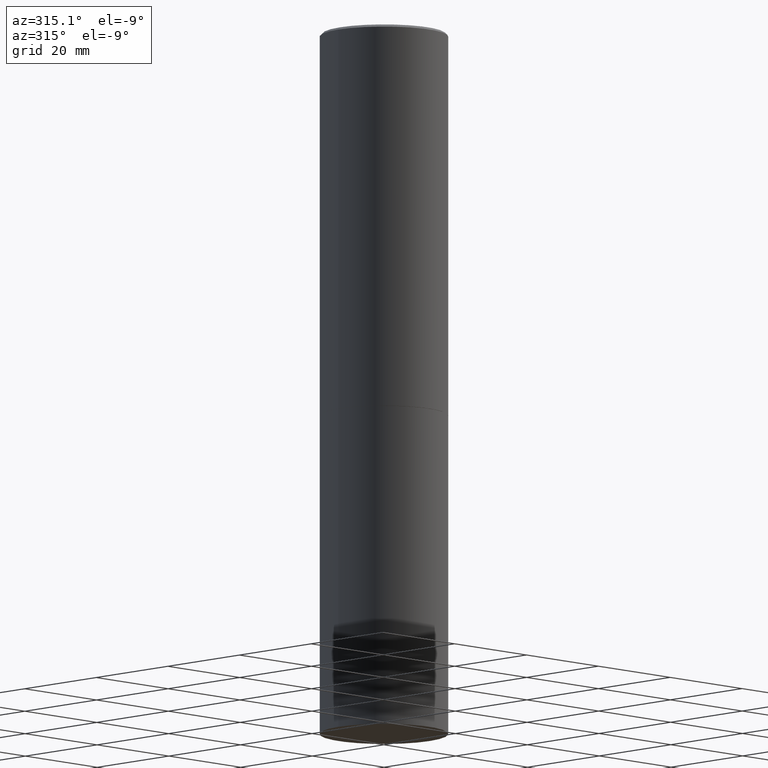
[diagram: clean part render]
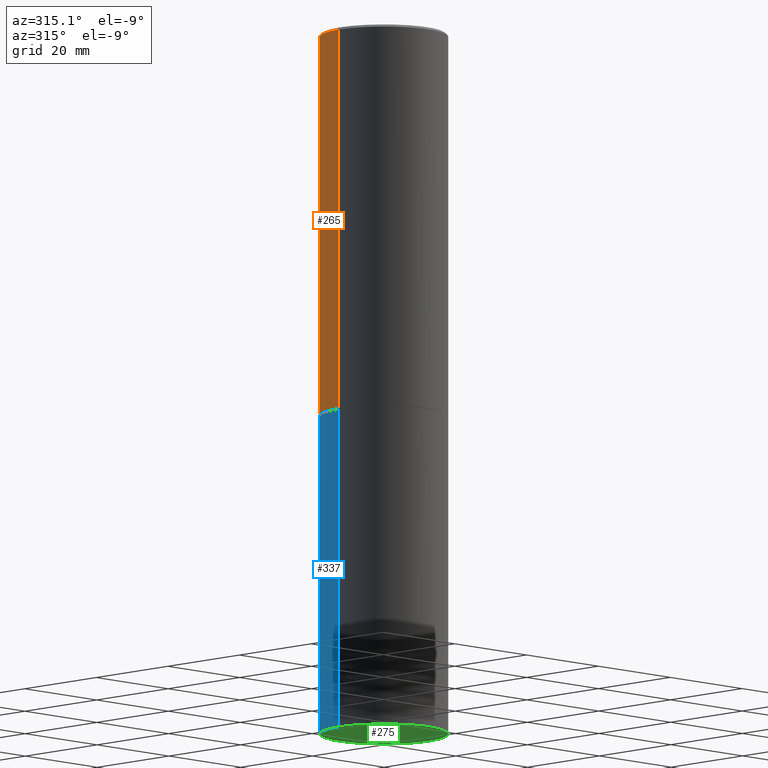
[diagram: same view with three faces highlighted in distinct colors, each labeled with its STEP entity id]
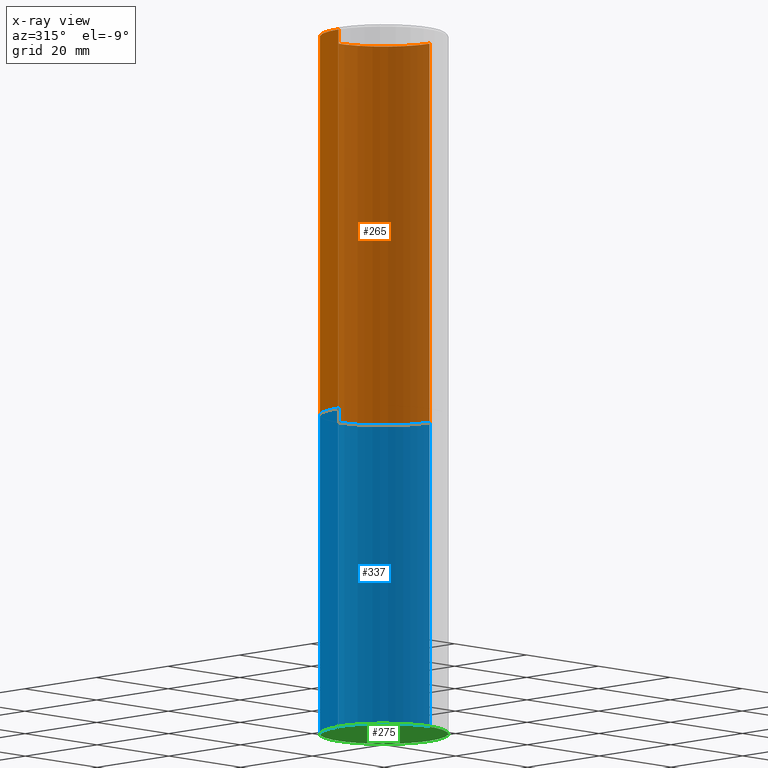
[diagram: x-ray of the same camera — body ghosted, the three highlighted faces saturated]
A machine part, auxiliary view with three faces highlighted in distinct colors.
The next image is the same camera in x-ray (body ghosted, the three faces saturated) — at least one of them is partly hidden behind the body in this view.
Their STEP definitions:

[orange] entity #265 — the highlighted cylindrical surface (partial cylindrical patch) has radius 12.7 mm, axis along (-0, 0, 1).
#1 = DIRECTION ( 'NONE',  ( 1.000000000000000000, -6.982962677686266711E-15, 0.000000000000000000 ) ) ;
#3 = LINE ( 'NONE', #17, #142 ) ;
#12 = VERTEX_POINT ( 'NONE', #364 ) ;
#17 = CARTESIAN_POINT ( 'NONE',  ( -0.4999999999999998335, 3.552713678800499746E-15, -2.459467545127452330E-29 ) ) ;
#18 = VERTEX_POINT ( 'NONE', #109 ) ;
#42 = VERTEX_POINT ( 'NONE', #187 ) ;
#46 = EDGE_LOOP ( 'NONE', ( #338, #139, #298, #237 ) ) ;
#50 = CIRCLE ( 'NONE', #341, 0.5000000000000000000 ) ;
#53 = CARTESIAN_POINT ( 'NONE',  ( 0.4999999999999998335, -3.491481338843132566E-15, 2.438088387897967336E-29 ) ) ;
#92 = DIRECTION ( 'NONE',  ( -2.445468806185136597E-29, 3.491481338843145583E-15, 1.000000000000000000 ) ) ;
#107 = DIRECTION ( 'NONE',  ( -2.445468806185136877E-29, 3.491481338843145188E-15, 1.000000000000000000 ) ) ;
#109 = CARTESIAN_POINT ( 'NONE',  ( 0.4999999999999997224, -3.500078625662627502E-15, -0.02000000000000013572 ) ) ;
#132 = DIRECTION ( 'NONE',  ( -2.445468806185136597E-29, 3.491481338843145583E-15, 1.000000000000000000 ) ) ;
#134 = LINE ( 'NONE', #53, #175 ) ;
#139 = ORIENTED_EDGE ( 'NONE', *, *, #172, .T. ) ;
#142 = VECTOR ( 'NONE', #163, 39.37007874015748143 ) ;
#146 = CARTESIAN_POINT ( 'NONE',  ( 7.333960949749226429E-29, -1.047095253519059492E-14, -2.999000000000000554 ) ) ;
#155 = AXIS2_PLACEMENT_3D ( 'NONE', #208, #132, #1 ) ;
#163 = DIRECTION ( 'NONE',  ( -2.445468806185136877E-29, 3.491481338843145188E-15, 1.000000000000000000 ) ) ;
#172 = EDGE_CURVE ( 'NONE', #42, #12, #3, .T. ) ;
#175 = VECTOR ( 'NONE', #107, 39.37007874015748143 ) ;
#187 = CARTESIAN_POINT ( 'NONE',  ( -0.5000000000000000000, -1.717677402183226998E-15, -2.999000000000000554 ) ) ;
#207 = CIRCLE ( 'NONE', #155, 0.4999999999999997224 ) ;
#208 = CARTESIAN_POINT ( 'NONE',  ( 4.890937612370306439E-31, -6.982962677686338448E-17, -0.02000000000000013572 ) ) ;
#211 = CYLINDRICAL_SURFACE ( 'NONE', #330, 0.4999999999999998335 ) ;
#217 = DIRECTION ( 'NONE',  ( -2.445468806185136597E-29, 3.491481338843145583E-15, 1.000000000000000000 ) ) ;
#221 = DIRECTION ( 'NONE',  ( 1.000000000000000000, -6.982962677686266711E-15, 0.000000000000000000 ) ) ;
#237 = ORIENTED_EDGE ( 'NONE', *, *, #284, .F. ) ;
#240 = EDGE_CURVE ( 'NONE', #18, #12, #207, .T. ) ;
#245 = FACE_OUTER_BOUND ( 'NONE', #46, .T. ) ;
#262 = DIRECTION ( 'NONE',  ( 1.000000000000000000, -6.982962677686267499E-15, 4.876176775795936353E-29 ) ) ;
#265 = ADVANCED_FACE ( 'NONE', ( #245 ), #211, .T. ) ;
#284 = EDGE_CURVE ( 'NONE', #289, #18, #134, .T. ) ;
#289 = VERTEX_POINT ( 'NONE', #366 ) ;
#298 = ORIENTED_EDGE ( 'NONE', *, *, #240, .F. ) ;
#330 = AXIS2_PLACEMENT_3D ( 'NONE', #361, #217, #262 ) ;
#338 = ORIENTED_EDGE ( 'NONE', *, *, #358, .T. ) ;
#341 = AXIS2_PLACEMENT_3D ( 'NONE', #146, #92, #221 ) ;
#358 = EDGE_CURVE ( 'NONE', #289, #42, #50, .T. ) ;
#361 = CARTESIAN_POINT ( 'NONE',  ( 0.000000000000000000, 0.000000000000000000, 0.000000000000000000 ) ) ;
#364 = CARTESIAN_POINT ( 'NONE',  ( -0.4999999999999997224, 3.421651712066268085E-15, -0.02000000000000013572 ) ) ;
#366 = CARTESIAN_POINT ( 'NONE',  ( 0.5000000000000000000, -1.396243387403372828E-14, -2.999000000000000554 ) ) ;

[blue] entity #337 — the highlighted cylindrical surface (partial cylindrical patch) has radius 12.7 mm, axis along (-0, 0, 1).
#6 = VECTOR ( 'NONE', #311, 39.37007874015748143 ) ;
#10 = VECTOR ( 'NONE', #57, 39.37007874015748143 ) ;
#15 = DIRECTION ( 'NONE',  ( -2.445468806185136597E-29, 3.491481338843145583E-15, 1.000000000000000000 ) ) ;
#21 = FACE_OUTER_BOUND ( 'NONE', #79, .T. ) ;
#28 = EDGE_CURVE ( 'NONE', #213, #69, #215, .T. ) ;
#45 = EDGE_CURVE ( 'NONE', #272, #239, #206, .T. ) ;
#55 = AXIS2_PLACEMENT_3D ( 'NONE', #171, #15, #130 ) ;
#56 = CYLINDRICAL_SURFACE ( 'NONE', #55, 0.5000000000000000000 ) ;
#57 = DIRECTION ( 'NONE',  ( -2.445468806185136877E-29, 3.491481338843145188E-15, 1.000000000000000000 ) ) ;
#69 = VERTEX_POINT ( 'NONE', #133 ) ;
#72 = ORIENTED_EDGE ( 'NONE', *, *, #290, .F. ) ;
#79 = EDGE_LOOP ( 'NONE', ( #295, #204, #72, #103 ) ) ;
#103 = ORIENTED_EDGE ( 'NONE', *, *, #28, .F. ) ;
#106 = CARTESIAN_POINT ( 'NONE',  ( -0.5000000000000000000, -1.128608201128286632E-14, -5.500000000000000000 ) ) ;
#129 = AXIS2_PLACEMENT_3D ( 'NONE', #345, #180, #280 ) ;
#130 = DIRECTION ( 'NONE',  ( 1.000000000000000000, -6.982962677686266711E-15, 4.876176775795935793E-29 ) ) ;
#133 = CARTESIAN_POINT ( 'NONE',  ( 0.5000000000000000000, -1.396592535537256813E-14, -2.999999999999999556 ) ) ;
#164 = CIRCLE ( 'NONE', #129, 0.5000000000000000000 ) ;
#167 = DIRECTION ( 'NONE',  ( -2.445468806185136597E-29, 3.491481338843145583E-15, 1.000000000000000000 ) ) ;
#168 = CARTESIAN_POINT ( 'NONE',  ( -0.5000000000000000000, -1.128608201128286632E-14, -2.999999999999999556 ) ) ;
#171 = CARTESIAN_POINT ( 'NONE',  ( 0.000000000000000000, 0.000000000000000000, 0.000000000000000000 ) ) ;
#180 = DIRECTION ( 'NONE',  ( -2.445468806185136597E-29, 3.491481338843145583E-15, 1.000000000000000000 ) ) ;
#204 = ORIENTED_EDGE ( 'NONE', *, *, #45, .T. ) ;
#206 = LINE ( 'NONE', #259, #6 ) ;
#213 = VERTEX_POINT ( 'NONE', #266 ) ;
#215 = LINE ( 'NONE', #303, #10 ) ;
#239 = VERTEX_POINT ( 'NONE', #168 ) ;
#259 = CARTESIAN_POINT ( 'NONE',  ( -0.5000000000000000000, 3.552713678800500929E-15, -2.459467545127452891E-29 ) ) ;
#266 = CARTESIAN_POINT ( 'NONE',  ( 0.5000000000000000000, -2.269462870248043307E-14, -5.500000000000000000 ) ) ;
#272 = VERTEX_POINT ( 'NONE', #106 ) ;
#280 = DIRECTION ( 'NONE',  ( 1.000000000000000000, -6.982962677686262766E-15, 0.000000000000000000 ) ) ;
#283 = CIRCLE ( 'NONE', #362, 0.5000000000000000000 ) ;
#290 = EDGE_CURVE ( 'NONE', #69, #239, #283, .T. ) ;
#295 = ORIENTED_EDGE ( 'NONE', *, *, #354, .T. ) ;
#302 = CARTESIAN_POINT ( 'NONE',  ( 7.336406418555408669E-29, -1.047444401652943478E-14, -2.999999999999999556 ) ) ;
#303 = CARTESIAN_POINT ( 'NONE',  ( 0.5000000000000000000, -3.491481338843133355E-15, 2.438088387897967896E-29 ) ) ;
#311 = DIRECTION ( 'NONE',  ( -2.445468806185136877E-29, 3.491481338843145188E-15, 1.000000000000000000 ) ) ;
#335 = DIRECTION ( 'NONE',  ( 1.000000000000000000, -6.982962677686266711E-15, 0.000000000000000000 ) ) ;
#337 = ADVANCED_FACE ( 'NONE', ( #21 ), #56, .T. ) ;
#345 = CARTESIAN_POINT ( 'NONE',  ( 1.345007843401824904E-28, -1.920314736363729972E-14, -5.500000000000000000 ) ) ;
#354 = EDGE_CURVE ( 'NONE', #213, #272, #164, .T. ) ;
#362 = AXIS2_PLACEMENT_3D ( 'NONE', #302, #167, #335 ) ;

[green] entity #275 — the highlighted planar face has unit normal (0, -0, -1).
#19 = PLANE ( 'NONE',  #81 ) ;
#24 = FACE_OUTER_BOUND ( 'NONE', #353, .T. ) ;
#54 = DIRECTION ( 'NONE',  ( -2.445468806185136597E-29, 3.491481338843145583E-15, 1.000000000000000000 ) ) ;
#70 = ORIENTED_EDGE ( 'NONE', *, *, #354, .F. ) ;
#81 = AXIS2_PLACEMENT_3D ( 'NONE', #108, #195, #292 ) ;
#106 = CARTESIAN_POINT ( 'NONE',  ( -0.5000000000000000000, -1.128608201128286632E-14, -5.500000000000000000 ) ) ;
#108 = CARTESIAN_POINT ( 'NONE',  ( 3.491481338843267462E-15, 0.4999999999999807931, -5.500000000000001776 ) ) ;
#114 = AXIS2_PLACEMENT_3D ( 'NONE', #238, #54, #138 ) ;
#129 = AXIS2_PLACEMENT_3D ( 'NONE', #345, #180, #280 ) ;
#138 = DIRECTION ( 'NONE',  ( 1.000000000000000000, -6.982962677686262766E-15, 0.000000000000000000 ) ) ;
#164 = CIRCLE ( 'NONE', #129, 0.5000000000000000000 ) ;
#180 = DIRECTION ( 'NONE',  ( -2.445468806185136597E-29, 3.491481338843145583E-15, 1.000000000000000000 ) ) ;
#195 = DIRECTION ( 'NONE',  ( 2.438088387897960049E-29, -3.491481338843145188E-15, -1.000000000000000000 ) ) ;
#213 = VERTEX_POINT ( 'NONE', #266 ) ;
#231 = ORIENTED_EDGE ( 'NONE', *, *, #256, .F. ) ;
#238 = CARTESIAN_POINT ( 'NONE',  ( 1.345007843401824904E-28, -1.920314736363729972E-14, -5.500000000000000000 ) ) ;
#256 = EDGE_CURVE ( 'NONE', #272, #213, #261, .T. ) ;
#261 = CIRCLE ( 'NONE', #114, 0.5000000000000000000 ) ;
#266 = CARTESIAN_POINT ( 'NONE',  ( 0.5000000000000000000, -2.269462870248043307E-14, -5.500000000000000000 ) ) ;
#272 = VERTEX_POINT ( 'NONE', #106 ) ;
#275 = ADVANCED_FACE ( 'NONE', ( #24 ), #19, .T. ) ;
#280 = DIRECTION ( 'NONE',  ( 1.000000000000000000, -6.982962677686262766E-15, 0.000000000000000000 ) ) ;
#292 = DIRECTION ( 'NONE',  ( -1.000000000000000000, 6.982962677686265922E-15, -4.876176775795935793E-29 ) ) ;
#345 = CARTESIAN_POINT ( 'NONE',  ( 1.345007843401824904E-28, -1.920314736363729972E-14, -5.500000000000000000 ) ) ;
#353 = EDGE_LOOP ( 'NONE', ( #70, #231 ) ) ;
#354 = EDGE_CURVE ( 'NONE', #213, #272, #164, .T. ) ;